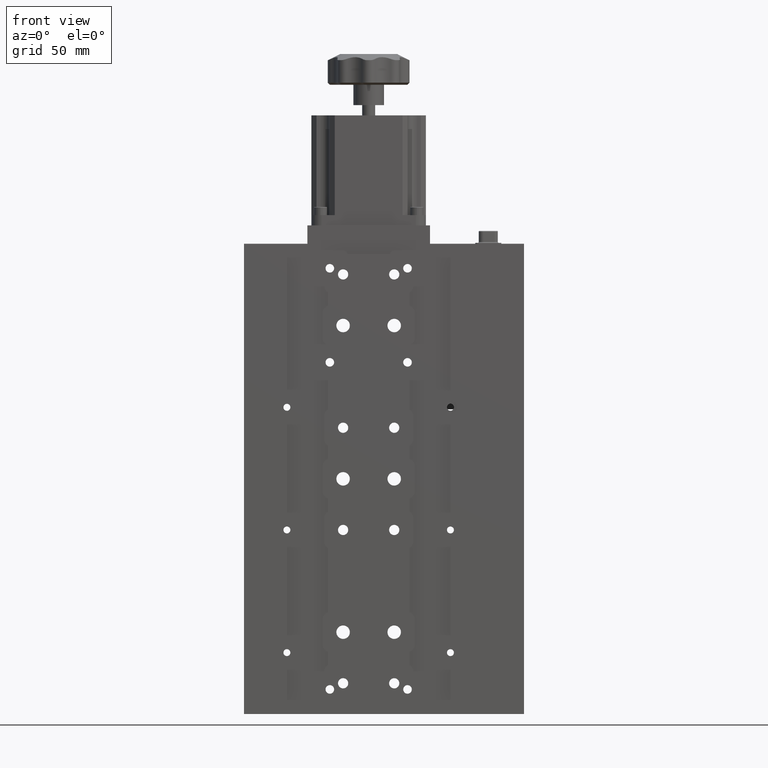
[diagram: clean part render]
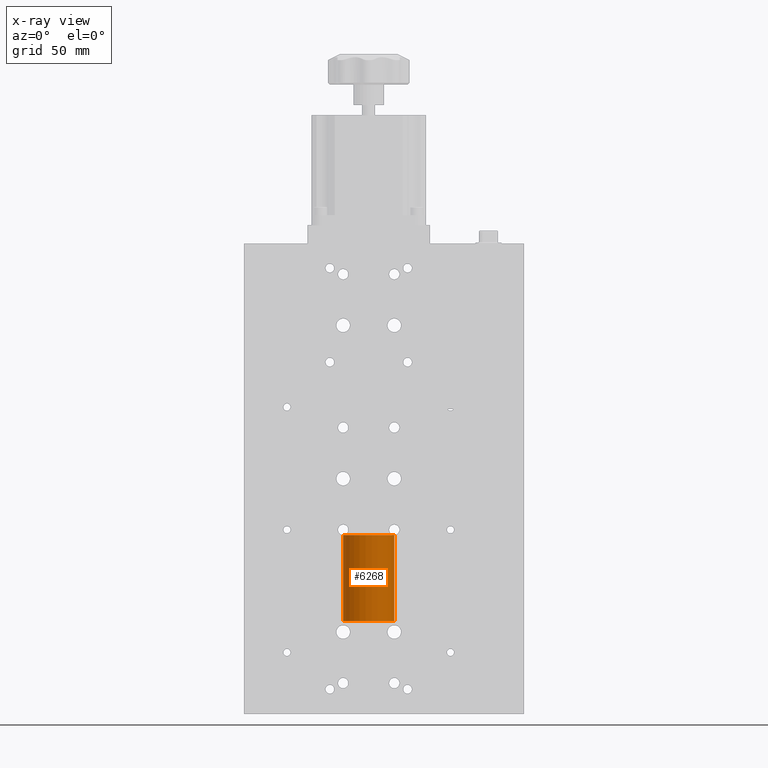
[diagram: x-ray — body ghosted, one internal face saturated and labeled with its STEP entity id]
A machine part, front view, then the same camera in x-ray: the body is ghosted and one INTERNAL B-rep face — a face not visible from any outside direction — is saturated and labeled: STEP entity #6268.
In plain terms, the highlighted cylindrical surface (edge-blend (fillet) strip) has radius 12.5 mm, axis along (-0, -0, -1).
Its self-contained STEP definition (entity closure, byte-faithful):
#221 = EDGE_CURVE ( 'NONE', #15285, #19923, #14539, .T. ) ;
#1606 = ORIENTED_EDGE ( 'NONE', *, *, #32086, .T. ) ;
#1611 = FACE_OUTER_BOUND ( 'NONE', #5152, .T. ) ;
#2741 = CARTESIAN_POINT ( 'NONE',  ( -23.11080835603947700, 20.58234937935199200, 4.500000000000024900 ) ) ;
#3584 = CARTESIAN_POINT ( 'NONE',  ( -23.11080835603947700, 20.58234937935199200, -69.49999999999997200 ) ) ;
#4045 = ORIENTED_EDGE ( 'NONE', *, *, #221, .F. ) ;
#5152 = EDGE_LOOP ( 'NONE', ( #16711, #1606, #4045, #28732 ) ) ;
#5762 = DIRECTION ( 'NONE',  ( -0.0000000000000000000, -0.0000000000000000000, -1.000000000000000000 ) ) ;
#6268 = ADVANCED_FACE ( 'NONE', ( #1611 ), #29387, .F. ) ;
#6631 = CARTESIAN_POINT ( 'NONE',  ( 1.889191643959644300, 20.58234937935199200, -69.49999999999997200 ) ) ;
#9073 = VERTEX_POINT ( 'NONE', #13112 ) ;
#9409 = EDGE_CURVE ( 'NONE', #31445, #9073, #15144, .T. ) ;
#9594 = VECTOR ( 'NONE', #14048, 1000.000000000000000 ) ;
#9736 = AXIS2_PLACEMENT_3D ( 'NONE', #32216, #14476, #35233 ) ;
#10502 = LINE ( 'NONE', #11106, #9594 ) ;
#10829 = DIRECTION ( 'NONE',  ( -0.0000000000000000000, -0.0000000000000000000, -1.000000000000000000 ) ) ;
#11106 = CARTESIAN_POINT ( 'NONE',  ( 1.889191643959644300, 20.58234937935199200, 4.500000000000024900 ) ) ;
#13112 = CARTESIAN_POINT ( 'NONE',  ( 1.889191643959644300, 20.58234937935199200, -27.49999999999997500 ) ) ;
#14048 = DIRECTION ( 'NONE',  ( -0.0000000000000000000, -0.0000000000000000000, -1.000000000000000000 ) ) ;
#14476 = DIRECTION ( 'NONE',  ( 0.0000000000000000000, 0.0000000000000000000, 1.000000000000000000 ) ) ;
#14539 = CIRCLE ( 'NONE', #20216, 12.49999999999956100 ) ;
#15144 = CIRCLE ( 'NONE', #9736, 12.49999999999956100 ) ;
#15285 = VERTEX_POINT ( 'NONE', #3584 ) ;
#15694 = CARTESIAN_POINT ( 'NONE',  ( -10.61080835603991800, 20.58234937935199200, -69.49999999999997200 ) ) ;
#16711 = ORIENTED_EDGE ( 'NONE', *, *, #9409, .T. ) ;
#17633 = VECTOR ( 'NONE', #5762, 1000.000000000000000 ) ;
#18656 = DIRECTION ( 'NONE',  ( 1.000000000000000000, 0.0000000000000000000, 0.0000000000000000000 ) ) ;
#19923 = VERTEX_POINT ( 'NONE', #6631 ) ;
#20216 = AXIS2_PLACEMENT_3D ( 'NONE', #15694, #36428, #18656 ) ;
#25187 = CARTESIAN_POINT ( 'NONE',  ( -23.11080835603947700, 20.58234937935199200, -27.49999999999997500 ) ) ;
#25676 = DIRECTION ( 'NONE',  ( -1.000000000000000000, 0.0000000000000000000, 0.0000000000000000000 ) ) ;
#26459 = LINE ( 'NONE', #2741, #17633 ) ;
#27565 = EDGE_CURVE ( 'NONE', #31445, #15285, #26459, .T. ) ;
#28732 = ORIENTED_EDGE ( 'NONE', *, *, #27565, .F. ) ;
#29387 = CYLINDRICAL_SURFACE ( 'NONE', #37066, 12.49999999999956100 ) ;
#31445 = VERTEX_POINT ( 'NONE', #25187 ) ;
#32086 = EDGE_CURVE ( 'NONE', #9073, #19923, #10502, .T. ) ;
#32216 = CARTESIAN_POINT ( 'NONE',  ( -10.61080835603991800, 20.58234937935199200, -27.49999999999997500 ) ) ;
#35233 = DIRECTION ( 'NONE',  ( 1.000000000000000000, 0.0000000000000000000, 0.0000000000000000000 ) ) ;
#36428 = DIRECTION ( 'NONE',  ( 0.0000000000000000000, 0.0000000000000000000, 1.000000000000000000 ) ) ;
#37066 = AXIS2_PLACEMENT_3D ( 'NONE', #37326, #10829, #25676 ) ;
#37326 = CARTESIAN_POINT ( 'NONE',  ( -10.61080835603991800, 20.58234937935199200, 4.500000000000024900 ) ) ;